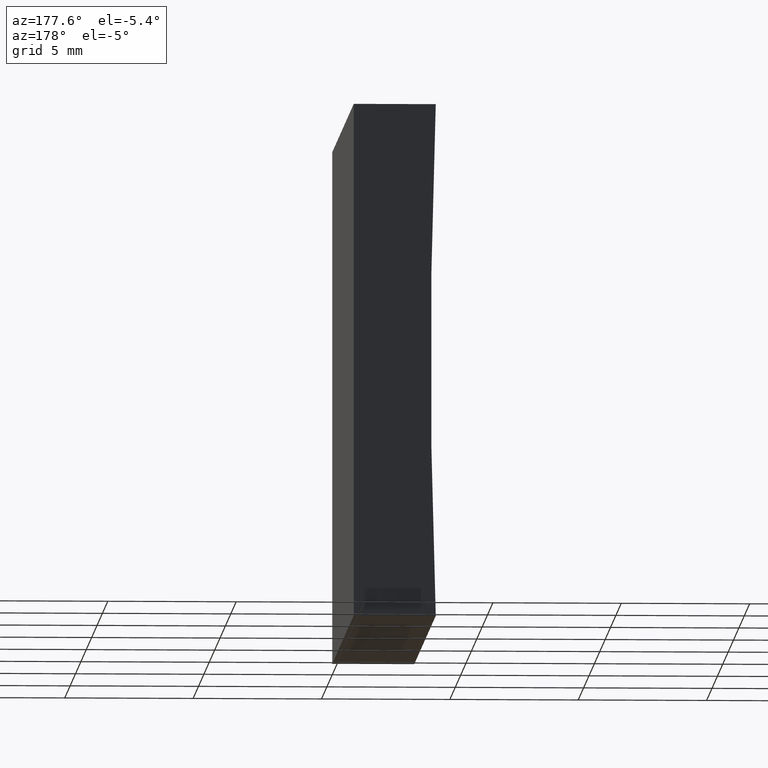
[diagram: clean part render]
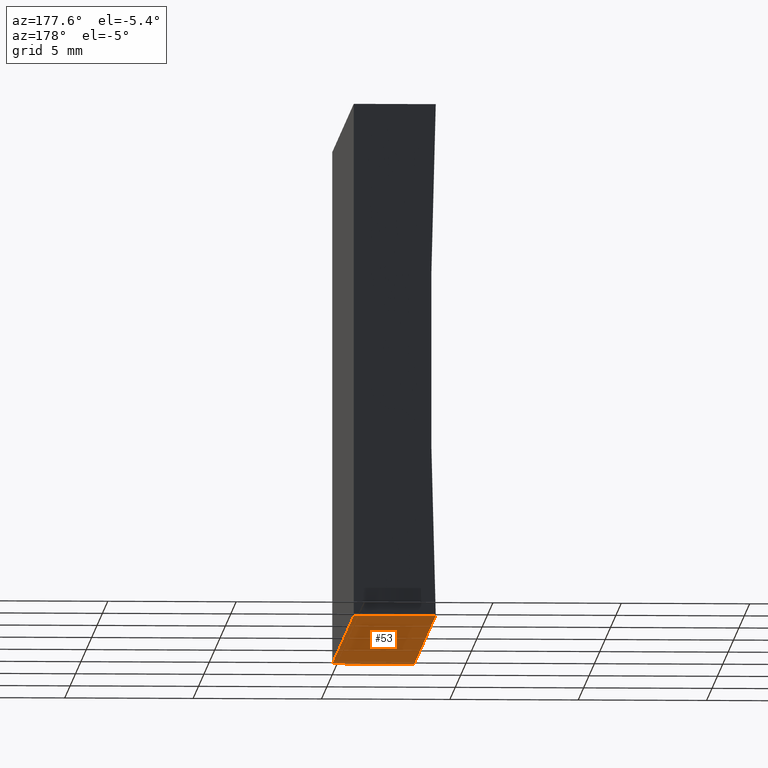
[diagram: same view with one face highlighted and labeled with its STEP entity id]
A machine part, auxiliary view. The second image highlights one B-rep face of the part: STEP entity #53.
In plain terms, the highlighted planar face has unit normal (-0, 0, 1).
Its self-contained STEP definition (entity closure, byte-faithful):
#5 = CARTESIAN_POINT ( 'NONE',  ( 0.0000000000000000000, 0.0000000000000000000, 0.0000000000000000000 ) ) ;
#10 = CARTESIAN_POINT ( 'NONE',  ( -3.193496016844377100, 20.00000000000000000, -2.081668171172168500E-014 ) ) ;
#11 = DIRECTION ( 'NONE',  ( -1.086410295692777000E-015, 0.0000000000000000000, 1.000000000000000000 ) ) ;
#16 = VECTOR ( 'NONE', #126, 1000.000000000000000 ) ;
#29 = CARTESIAN_POINT ( 'NONE',  ( -3.193496016844377100, 0.0000000000000000000, -2.081668171172168500E-014 ) ) ;
#33 = EDGE_LOOP ( 'NONE', ( #99, #36, #83, #108 ) ) ;
#36 = ORIENTED_EDGE ( 'NONE', *, *, #180, .F. ) ;
#37 = AXIS2_PLACEMENT_3D ( 'NONE', #103, #11, #187 ) ;
#44 = EDGE_CURVE ( 'NONE', #137, #67, #81, .T. ) ;
#50 = VECTOR ( 'NONE', #154, 1000.000000000000000 ) ;
#53 = ADVANCED_FACE ( 'NONE', ( #146 ), #143, .F. ) ;
#67 = VERTEX_POINT ( 'NONE', #29 ) ;
#69 = EDGE_CURVE ( 'NONE', #167, #150, #123, .T. ) ;
#81 = LINE ( 'NONE', #5, #112 ) ;
#83 = ORIENTED_EDGE ( 'NONE', *, *, #69, .F. ) ;
#95 = CARTESIAN_POINT ( 'NONE',  ( 0.0000000000000000000, 20.00000000000000000, 0.0000000000000000000 ) ) ;
#97 = LINE ( 'NONE', #196, #16 ) ;
#99 = ORIENTED_EDGE ( 'NONE', *, *, #44, .T. ) ;
#101 = VECTOR ( 'NONE', #181, 1000.000000000000000 ) ;
#103 = CARTESIAN_POINT ( 'NONE',  ( 0.0000000000000000000, 20.00000000000000000, 0.0000000000000000000 ) ) ;
#108 = ORIENTED_EDGE ( 'NONE', *, *, #136, .T. ) ;
#112 = VECTOR ( 'NONE', #132, 1000.000000000000000 ) ;
#123 = LINE ( 'NONE', #95, #101 ) ;
#126 = DIRECTION ( 'NONE',  ( -0.0000000000000000000, -1.000000000000000000, -0.0000000000000000000 ) ) ;
#132 = DIRECTION ( 'NONE',  ( -1.000000000000000000, 0.0000000000000000000, -1.086410295692777000E-015 ) ) ;
#136 = EDGE_CURVE ( 'NONE', #167, #137, #202, .T. ) ;
#137 = VERTEX_POINT ( 'NONE', #193 ) ;
#143 = PLANE ( 'NONE',  #37 ) ;
#146 = FACE_OUTER_BOUND ( 'NONE', #33, .T. ) ;
#150 = VERTEX_POINT ( 'NONE', #10 ) ;
#154 = DIRECTION ( 'NONE',  ( -0.0000000000000000000, -1.000000000000000000, -0.0000000000000000000 ) ) ;
#157 = CARTESIAN_POINT ( 'NONE',  ( 0.0000000000000000000, 20.00000000000000000, 0.0000000000000000000 ) ) ;
#161 = CARTESIAN_POINT ( 'NONE',  ( 0.0000000000000000000, 20.00000000000000000, 0.0000000000000000000 ) ) ;
#167 = VERTEX_POINT ( 'NONE', #157 ) ;
#180 = EDGE_CURVE ( 'NONE', #150, #67, #97, .T. ) ;
#181 = DIRECTION ( 'NONE',  ( -1.000000000000000000, 0.0000000000000000000, -1.086410295692777000E-015 ) ) ;
#187 = DIRECTION ( 'NONE',  ( 1.000000000000000000, 0.0000000000000000000, 1.086410295692777000E-015 ) ) ;
#193 = CARTESIAN_POINT ( 'NONE',  ( 0.0000000000000000000, 0.0000000000000000000, 0.0000000000000000000 ) ) ;
#196 = CARTESIAN_POINT ( 'NONE',  ( -3.193496016844377100, 20.00000000000000000, -2.081668171172168500E-014 ) ) ;
#202 = LINE ( 'NONE', #161, #50 ) ;